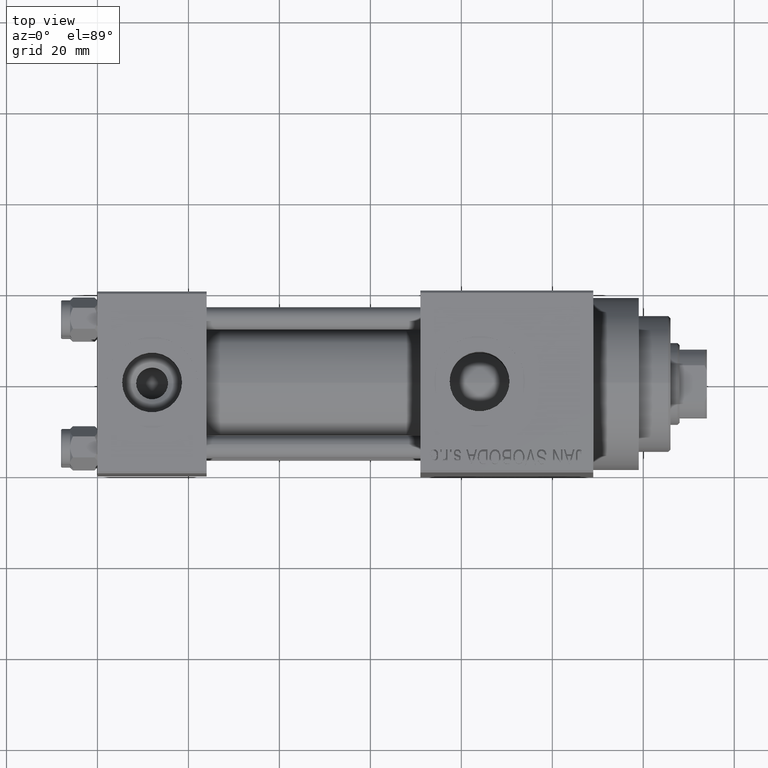
[diagram: clean part render]
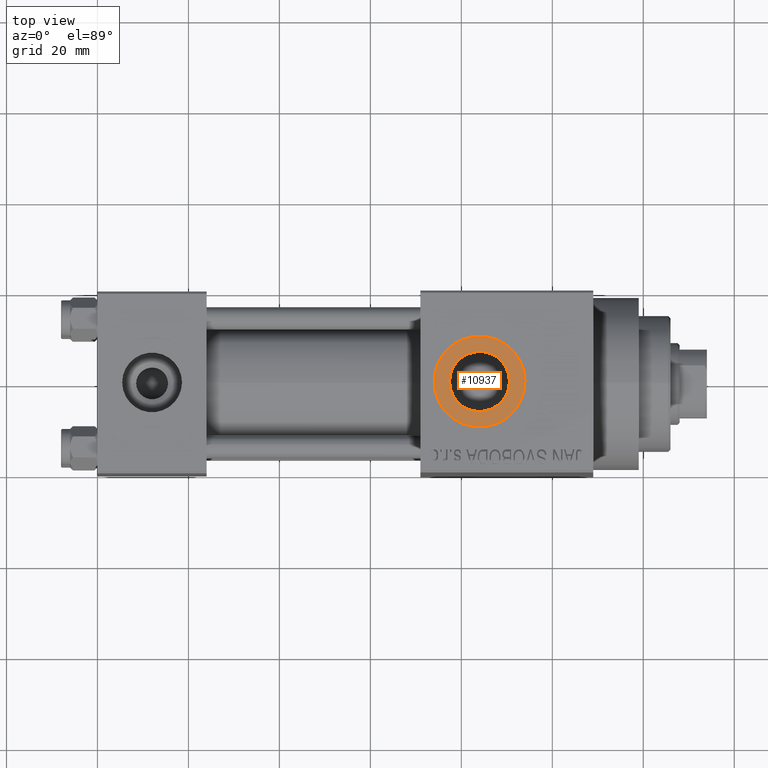
[diagram: same view with one face highlighted and labeled with its STEP entity id]
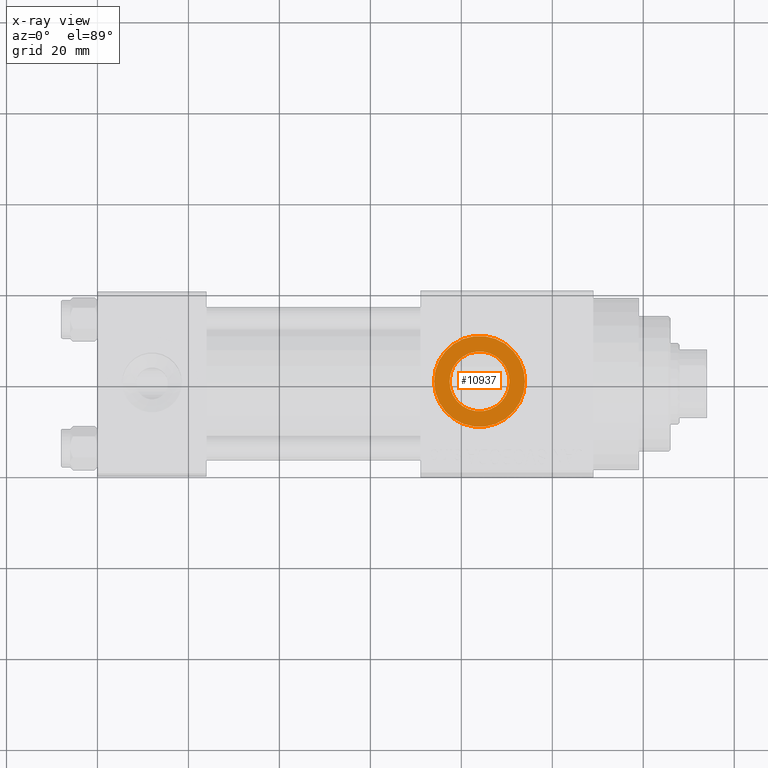
[diagram: x-ray of the same camera — body ghosted, the highlighted face saturated]
A machine part, top view. The second image highlights one B-rep face of the part: STEP entity #10937.
The next image is the same camera in x-ray: the body ghosted, the highlighted face saturated — about 0% of this face is hidden behind the body in this view.
In plain terms, the highlighted planar face has unit normal (0, 0, 1).
Its self-contained STEP definition (entity closure, byte-faithful):
#160 = EDGE_LOOP ( 'NONE', ( #40027, #27381 ) ) ;
#666 = CIRCLE ( 'NONE', #40933, 6.580000000001542837 ) ;
#1086 = EDGE_LOOP ( 'NONE', ( #32910, #5031 ) ) ;
#4827 = CARTESIAN_POINT ( 'NONE',  ( 84.00000000000000000, -5.551115123125782702E-15, 31.80000000000000071 ) ) ;
#5031 = ORIENTED_EDGE ( 'NONE', *, *, #34783, .T. ) ;
#7176 = CARTESIAN_POINT ( 'NONE',  ( 73.99999999999845102, -4.326468323978240316E-15, 31.80000000000000071 ) ) ;
#9859 = EDGE_CURVE ( 'NONE', #21688, #12116, #42003, .T. ) ;
#10909 = DIRECTION ( 'NONE',  ( 1.000000000000000000, 0.000000000000000000, 0.000000000000000000 ) ) ;
#10937 = ADVANCED_FACE ( 'NONE', ( #22356, #36871 ), #25679, .T. ) ;
#12116 = VERTEX_POINT ( 'NONE', #28320 ) ;
#14747 = DIRECTION ( 'NONE',  ( 0.000000000000000000, 0.000000000000000000, 1.000000000000000000 ) ) ;
#15450 = AXIS2_PLACEMENT_3D ( 'NONE', #18302, #14747, #31490 ) ;
#15901 = CARTESIAN_POINT ( 'NONE',  ( 84.00000000000000000, -5.551115123125782702E-15, 31.80000000000000071 ) ) ;
#16760 = EDGE_CURVE ( 'NONE', #12116, #21688, #666, .T. ) ;
#18302 = CARTESIAN_POINT ( 'NONE',  ( 84.00000000000000000, -5.551115123125782702E-15, 31.80000000000000071 ) ) ;
#18381 = CIRCLE ( 'NONE', #24463, 10.00000000000154898 ) ;
#18384 = DIRECTION ( 'NONE',  ( 1.000000000000000000, 0.000000000000000000, 0.000000000000000000 ) ) ;
#19157 = CARTESIAN_POINT ( 'NONE',  ( 84.00000000000000000, -5.551115123125782702E-15, 31.80000000000000071 ) ) ;
#21688 = VERTEX_POINT ( 'NONE', #44241 ) ;
#22312 = CARTESIAN_POINT ( 'NONE',  ( 84.00000000000000000, -5.551115123125782702E-15, 31.80000000000000071 ) ) ;
#22356 = FACE_BOUND ( 'NONE', #160, .T. ) ;
#24463 = AXIS2_PLACEMENT_3D ( 'NONE', #15901, #30414, #40688 ) ;
#24479 = AXIS2_PLACEMENT_3D ( 'NONE', #4827, #26704, #18384 ) ;
#25679 = PLANE ( 'NONE',  #15450 ) ;
#26165 = AXIS2_PLACEMENT_3D ( 'NONE', #19157, #33689, #34628 ) ;
#26704 = DIRECTION ( 'NONE',  ( -0.000000000000000000, -0.000000000000000000, -1.000000000000000000 ) ) ;
#26913 = CIRCLE ( 'NONE', #26165, 10.00000000000154898 ) ;
#27381 = ORIENTED_EDGE ( 'NONE', *, *, #16760, .T. ) ;
#28320 = CARTESIAN_POINT ( 'NONE',  ( 90.58000000000154728, -4.745297529286635122E-15, 31.80000000000000071 ) ) ;
#29377 = EDGE_CURVE ( 'NONE', #33048, #33105, #18381, .T. ) ;
#30414 = DIRECTION ( 'NONE',  ( 0.000000000000000000, 0.000000000000000000, 1.000000000000000000 ) ) ;
#31490 = DIRECTION ( 'NONE',  ( 1.000000000000000000, 0.000000000000000000, -0.000000000000000000 ) ) ;
#32910 = ORIENTED_EDGE ( 'NONE', *, *, #29377, .T. ) ;
#33048 = VERTEX_POINT ( 'NONE', #34308 ) ;
#33105 = VERTEX_POINT ( 'NONE', #7176 ) ;
#33689 = DIRECTION ( 'NONE',  ( 0.000000000000000000, 0.000000000000000000, 1.000000000000000000 ) ) ;
#34308 = CARTESIAN_POINT ( 'NONE',  ( 94.00000000000154898, -5.551115123125782702E-15, 31.80000000000000071 ) ) ;
#34628 = DIRECTION ( 'NONE',  ( 1.000000000000000000, 0.000000000000000000, 0.000000000000000000 ) ) ;
#34783 = EDGE_CURVE ( 'NONE', #33105, #33048, #26913, .T. ) ;
#36871 = FACE_OUTER_BOUND ( 'NONE', #1086, .T. ) ;
#40027 = ORIENTED_EDGE ( 'NONE', *, *, #9859, .T. ) ;
#40688 = DIRECTION ( 'NONE',  ( 1.000000000000000000, 0.000000000000000000, 0.000000000000000000 ) ) ;
#40933 = AXIS2_PLACEMENT_3D ( 'NONE', #22312, #43257, #10909 ) ;
#42003 = CIRCLE ( 'NONE', #24479, 6.580000000001542837 ) ;
#43257 = DIRECTION ( 'NONE',  ( -0.000000000000000000, -0.000000000000000000, -1.000000000000000000 ) ) ;
#44241 = CARTESIAN_POINT ( 'NONE',  ( 77.41999999999846693, -5.551115123125782702E-15, 31.80000000000000071 ) ) ;